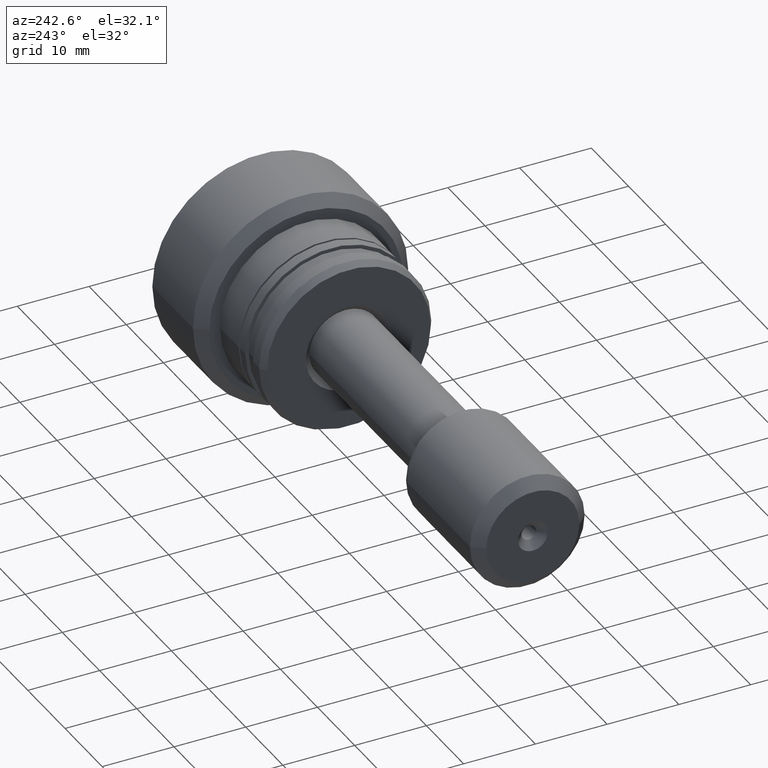
[diagram: clean part render]
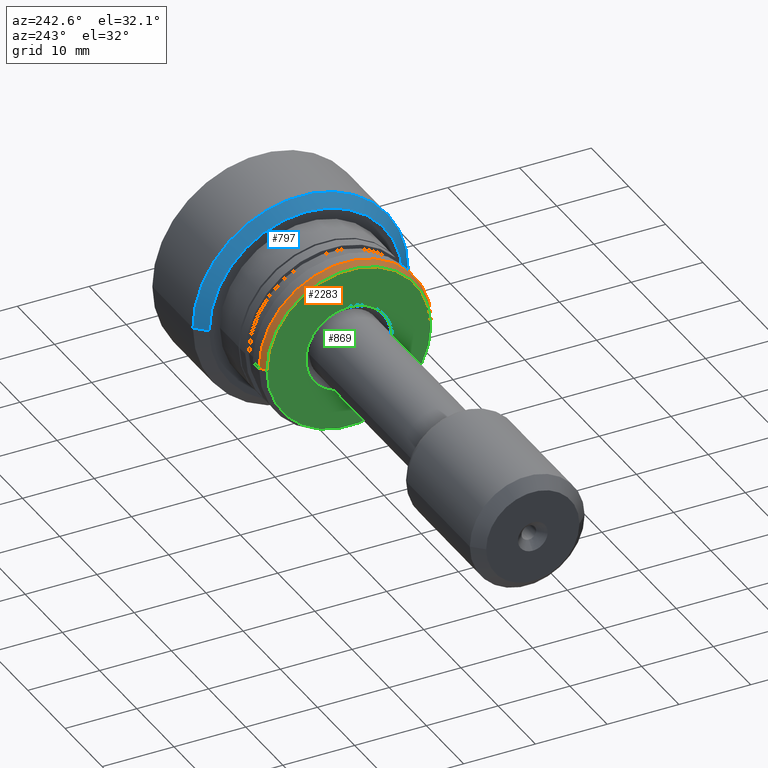
[diagram: same view with three faces highlighted in distinct colors, each labeled with its STEP entity id]
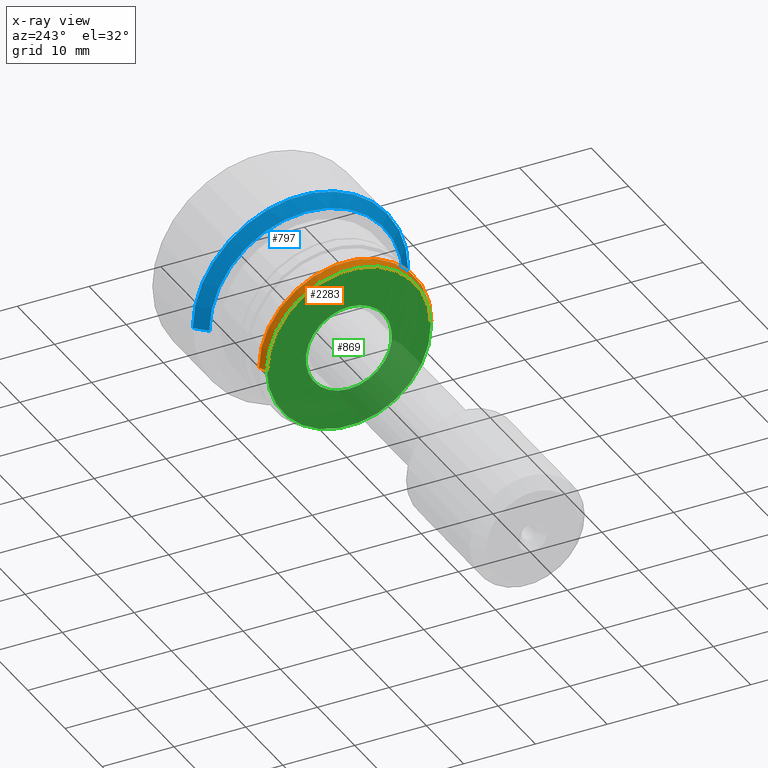
[diagram: x-ray of the same camera — body ghosted, the three highlighted faces saturated]
A machine part, auxiliary view with three faces highlighted in distinct colors.
The next image is the same camera in x-ray (body ghosted, the three faces saturated) — at least one of them is partly hidden behind the body in this view.
Their STEP definitions:

[orange] entity #2283 — the highlighted conical surface has half-angle 30 deg.
#16 = CARTESIAN_POINT ( 'NONE',  ( -23.50000000000017764, -12.00000000000000178, 1.469576158976823750E-15 ) ) ;
#104 = DIRECTION ( 'NONE',  ( 6.074679752449074474E-16, 1.000000000000000000, 0.000000000000000000 ) ) ;
#132 = ORIENTED_EDGE ( 'NONE', *, *, #460, .T. ) ;
#149 = DIRECTION ( 'NONE',  ( -1.000000000000000000, 6.415603269213350828E-16, -0.000000000000000000 ) ) ;
#150 = DIRECTION ( 'NONE',  ( 0.8660254037844403729, 0.4999999999999970024, 0.000000000000000000 ) ) ;
#165 = CARTESIAN_POINT ( 'NONE',  ( -24.50000000000000000, -11.42264973081048218, 1.398871143061842890E-15 ) ) ;
#252 = AXIS2_PLACEMENT_3D ( 'NONE', #1428, #149, #912 ) ;
#398 = CARTESIAN_POINT ( 'NONE',  ( -24.50000000000000000, -11.42264973081048218, 1.434223651019333320E-15 ) ) ;
#460 = EDGE_CURVE ( 'NONE', #1648, #1387, #2444, .T. ) ;
#470 = CARTESIAN_POINT ( 'NONE',  ( -24.49999999999999289, -3.708233295962657324E-15, 0.000000000000000000 ) ) ;
#488 = ORIENTED_EDGE ( 'NONE', *, *, #2274, .F. ) ;
#794 = VECTOR ( 'NONE', #150, 1000.000000000000000 ) ;
#850 = DIRECTION ( 'NONE',  ( 1.000000000000000000, -6.415603269213350828E-16, 0.000000000000000000 ) ) ;
#853 = EDGE_CURVE ( 'NONE', #2213, #1387, #2285, .T. ) ;
#857 = CARTESIAN_POINT ( 'NONE',  ( -24.49999999999998579, 11.42264973081047508, 0.000000000000000000 ) ) ;
#890 = VERTEX_POINT ( 'NONE', #398 ) ;
#912 = DIRECTION ( 'NONE',  ( -6.074679752449074474E-16, -1.000000000000000000, 0.000000000000000000 ) ) ;
#961 = EDGE_LOOP ( 'NONE', ( #488, #2079, #132, #2328 ) ) ;
#1307 = CARTESIAN_POINT ( 'NONE',  ( -23.50000000000016342, 11.99999999999999467, 0.000000000000000000 ) ) ;
#1343 = LINE ( 'NONE', #165, #2087 ) ;
#1387 = VERTEX_POINT ( 'NONE', #1307 ) ;
#1428 = CARTESIAN_POINT ( 'NONE',  ( -24.49999999999999289, -3.708233295962657324E-15, 0.000000000000000000 ) ) ;
#1573 = AXIS2_PLACEMENT_3D ( 'NONE', #470, #850, #104 ) ;
#1648 = VERTEX_POINT ( 'NONE', #16 ) ;
#1681 = FACE_OUTER_BOUND ( 'NONE', #961, .T. ) ;
#1692 = CONICAL_SURFACE ( 'NONE', #1573, 11.42264973081047863, 0.5235987755982960401 ) ;
#1710 = DIRECTION ( 'NONE',  ( 0.8660254037844397068, -0.4999999999999981126, 6.123233995736736454E-17 ) ) ;
#1717 = CARTESIAN_POINT ( 'NONE',  ( -23.50000000000017053, -4.349793622883880783E-15, 0.000000000000000000 ) ) ;
#1758 = AXIS2_PLACEMENT_3D ( 'NONE', #1717, #2130, #2272 ) ;
#1855 = CARTESIAN_POINT ( 'NONE',  ( -24.49999999999998579, 11.42264973081047508, 0.000000000000000000 ) ) ;
#2079 = ORIENTED_EDGE ( 'NONE', *, *, #2358, .T. ) ;
#2087 = VECTOR ( 'NONE', #1710, 1000.000000000000000 ) ;
#2130 = DIRECTION ( 'NONE',  ( -1.000000000000000000, 6.415603269213350828E-16, -0.000000000000000000 ) ) ;
#2213 = VERTEX_POINT ( 'NONE', #857 ) ;
#2272 = DIRECTION ( 'NONE',  ( -5.782411586589357639E-16, -1.000000000000000000, 0.000000000000000000 ) ) ;
#2274 = EDGE_CURVE ( 'NONE', #890, #2213, #2348, .T. ) ;
#2283 = ADVANCED_FACE ( 'NONE', ( #1681 ), #1692, .T. ) ;
#2285 = LINE ( 'NONE', #1855, #794 ) ;
#2328 = ORIENTED_EDGE ( 'NONE', *, *, #853, .F. ) ;
#2348 = CIRCLE ( 'NONE', #252, 11.42264973081047863 ) ;
#2358 = EDGE_CURVE ( 'NONE', #890, #1648, #1343, .T. ) ;
#2444 = CIRCLE ( 'NONE', #1758, 11.99999999999999822 ) ;

[blue] entity #797 — the highlighted conical surface has half-angle 45 deg.
#10 = VERTEX_POINT ( 'NONE', #1330 ) ;
#48 = AXIS2_PLACEMENT_3D ( 'NONE', #1436, #856, #1626 ) ;
#236 = VERTEX_POINT ( 'NONE', #713 ) ;
#341 = CARTESIAN_POINT ( 'NONE',  ( -11.50000000000066969, 14.99999999999997691, 0.000000000000000000 ) ) ;
#361 = DIRECTION ( 'NONE',  ( 0.7071067811865483499, -0.7071067811865467956, 8.659560562354918067E-17 ) ) ;
#451 = DIRECTION ( 'NONE',  ( -1.000000000000000000, 6.415603269213350828E-16, -0.000000000000000000 ) ) ;
#480 = CIRCLE ( 'NONE', #48, 13.50000000000068034 ) ;
#529 = LINE ( 'NONE', #1691, #1531 ) ;
#532 = LINE ( 'NONE', #1515, #1574 ) ;
#576 = EDGE_CURVE ( 'NONE', #236, #2265, #2374, .T. ) ;
#713 = CARTESIAN_POINT ( 'NONE',  ( -11.50000000000069100, -15.00000000000000178, 1.836970198721028406E-15 ) ) ;
#753 = CONICAL_SURFACE ( 'NONE', #2150, 13.50000000000068034, 0.7853981633974466137 ) ;
#797 = ADVANCED_FACE ( 'NONE', ( #1199 ), #753, .T. ) ;
#856 = DIRECTION ( 'NONE',  ( -1.000000000000000000, 6.415603269213350828E-16, -0.000000000000000000 ) ) ;
#953 = EDGE_LOOP ( 'NONE', ( #1254, #2141, #1340, #1286 ) ) ;
#1126 = DIRECTION ( 'NONE',  ( 0.7071067811865491270, 0.7071067811865459074, 0.000000000000000000 ) ) ;
#1199 = FACE_OUTER_BOUND ( 'NONE', #953, .T. ) ;
#1216 = CARTESIAN_POINT ( 'NONE',  ( -11.50000000000068034, -1.204851754593957361E-14, 0.000000000000000000 ) ) ;
#1254 = ORIENTED_EDGE ( 'NONE', *, *, #2327, .F. ) ;
#1286 = ORIENTED_EDGE ( 'NONE', *, *, #2386, .F. ) ;
#1330 = CARTESIAN_POINT ( 'NONE',  ( -12.99999999999998579, 13.50000000000066969, 0.000000000000000000 ) ) ;
#1340 = ORIENTED_EDGE ( 'NONE', *, *, #576, .T. ) ;
#1382 = DIRECTION ( 'NONE',  ( -6.938893903907233308E-16, -1.000000000000000000, 0.000000000000000000 ) ) ;
#1385 = VERTEX_POINT ( 'NONE', #2402 ) ;
#1436 = CARTESIAN_POINT ( 'NONE',  ( -12.99999999999999467, -1.108617705555801137E-14, 0.000000000000000000 ) ) ;
#1515 = CARTESIAN_POINT ( 'NONE',  ( -12.99999999999998579, 13.50000000000066969, 0.000000000000000000 ) ) ;
#1531 = VECTOR ( 'NONE', #361, 1000.000000000000000 ) ;
#1574 = VECTOR ( 'NONE', #1126, 1000.000000000000114 ) ;
#1626 = DIRECTION ( 'NONE',  ( -6.424901762876739076E-16, -1.000000000000000000, 0.000000000000000000 ) ) ;
#1691 = CARTESIAN_POINT ( 'NONE',  ( -13.00000000000000355, -13.50000000000069100, 1.653273178849010091E-15 ) ) ;
#1736 = DIRECTION ( 'NONE',  ( 6.424901762876739076E-16, 1.000000000000000000, 0.000000000000000000 ) ) ;
#1911 = DIRECTION ( 'NONE',  ( 1.000000000000000000, -6.415603269213350828E-16, 0.000000000000000000 ) ) ;
#1971 = CARTESIAN_POINT ( 'NONE',  ( -12.99999999999999467, -1.108617705555801137E-14, 0.000000000000000000 ) ) ;
#2034 = AXIS2_PLACEMENT_3D ( 'NONE', #1216, #451, #1382 ) ;
#2088 = EDGE_CURVE ( 'NONE', #1385, #236, #529, .T. ) ;
#2141 = ORIENTED_EDGE ( 'NONE', *, *, #2088, .T. ) ;
#2150 = AXIS2_PLACEMENT_3D ( 'NONE', #1971, #1911, #1736 ) ;
#2265 = VERTEX_POINT ( 'NONE', #341 ) ;
#2327 = EDGE_CURVE ( 'NONE', #1385, #10, #480, .T. ) ;
#2374 = CIRCLE ( 'NONE', #2034, 14.99999999999998934 ) ;
#2386 = EDGE_CURVE ( 'NONE', #10, #2265, #532, .T. ) ;
#2402 = CARTESIAN_POINT ( 'NONE',  ( -13.00000000000000355, -13.50000000000069100, 1.745121688785019051E-15 ) ) ;

[green] entity #869 — the highlighted planar face has unit normal (-1, 0, 0).
#38 = CIRCLE ( 'NONE', #244, 6.000000000000019540 ) ;
#123 = FACE_OUTER_BOUND ( 'NONE', #139, .T. ) ;
#139 = EDGE_LOOP ( 'NONE', ( #1309, #844 ) ) ;
#149 = DIRECTION ( 'NONE',  ( -1.000000000000000000, 6.415603269213350828E-16, -0.000000000000000000 ) ) ;
#158 = DIRECTION ( 'NONE',  ( -1.000000000000000000, 6.415603269213350828E-16, -0.000000000000000000 ) ) ;
#244 = AXIS2_PLACEMENT_3D ( 'NONE', #971, #1337, #2095 ) ;
#252 = AXIS2_PLACEMENT_3D ( 'NONE', #1428, #149, #912 ) ;
#318 = CIRCLE ( 'NONE', #475, 6.000000000000019540 ) ;
#349 = CARTESIAN_POINT ( 'NONE',  ( -24.49999999999999289, -3.708233295962657324E-15, 0.000000000000000000 ) ) ;
#367 = CARTESIAN_POINT ( 'NONE',  ( -24.49999999999999645, 7.347880794884138472E-16, -6.000000000000015987 ) ) ;
#398 = CARTESIAN_POINT ( 'NONE',  ( -24.50000000000000000, -11.42264973081048218, 1.434223651019333320E-15 ) ) ;
#475 = AXIS2_PLACEMENT_3D ( 'NONE', #729, #1499, #1905 ) ;
#478 = ORIENTED_EDGE ( 'NONE', *, *, #490, .T. ) ;
#490 = EDGE_CURVE ( 'NONE', #595, #1857, #38, .T. ) ;
#595 = VERTEX_POINT ( 'NONE', #803 ) ;
#729 = CARTESIAN_POINT ( 'NONE',  ( -24.49999999999999645, 0.000000000000000000, 0.000000000000000000 ) ) ;
#803 = CARTESIAN_POINT ( 'NONE',  ( -24.49999999999999645, 0.000000000000000000, 6.000000000000015987 ) ) ;
#844 = ORIENTED_EDGE ( 'NONE', *, *, #2274, .T. ) ;
#857 = CARTESIAN_POINT ( 'NONE',  ( -24.49999999999998579, 11.42264973081047508, 0.000000000000000000 ) ) ;
#869 = ADVANCED_FACE ( 'NONE', ( #1342, #123 ), #2405, .T. ) ;
#890 = VERTEX_POINT ( 'NONE', #398 ) ;
#900 = DIRECTION ( 'NONE',  ( -6.415603269213350828E-16, -1.000000000000000000, 0.000000000000000000 ) ) ;
#912 = DIRECTION ( 'NONE',  ( -6.074679752449074474E-16, -1.000000000000000000, 0.000000000000000000 ) ) ;
#971 = CARTESIAN_POINT ( 'NONE',  ( -24.49999999999999645, 0.000000000000000000, 0.000000000000000000 ) ) ;
#1062 = EDGE_LOOP ( 'NONE', ( #478, #1376 ) ) ;
#1122 = EDGE_CURVE ( 'NONE', #1857, #595, #318, .T. ) ;
#1309 = ORIENTED_EDGE ( 'NONE', *, *, #2101, .T. ) ;
#1337 = DIRECTION ( 'NONE',  ( 1.000000000000000000, -6.415603269213350828E-16, 0.000000000000000000 ) ) ;
#1342 = FACE_BOUND ( 'NONE', #1062, .T. ) ;
#1376 = ORIENTED_EDGE ( 'NONE', *, *, #1122, .T. ) ;
#1407 = AXIS2_PLACEMENT_3D ( 'NONE', #349, #158, #1872 ) ;
#1428 = CARTESIAN_POINT ( 'NONE',  ( -24.49999999999999289, -3.708233295962657324E-15, 0.000000000000000000 ) ) ;
#1452 = DIRECTION ( 'NONE',  ( -1.000000000000000000, 6.415603269213350828E-16, 0.000000000000000000 ) ) ;
#1499 = DIRECTION ( 'NONE',  ( 1.000000000000000000, -6.415603269213350828E-16, 0.000000000000000000 ) ) ;
#1835 = AXIS2_PLACEMENT_3D ( 'NONE', #2026, #1452, #900 ) ;
#1857 = VERTEX_POINT ( 'NONE', #367 ) ;
#1872 = DIRECTION ( 'NONE',  ( -6.074679752449074474E-16, -1.000000000000000000, 0.000000000000000000 ) ) ;
#1905 = DIRECTION ( 'NONE',  ( -5.782411586589337917E-16, -1.000000000000000000, 0.000000000000000000 ) ) ;
#2026 = CARTESIAN_POINT ( 'NONE',  ( -24.49999999999999645, -3.708233295962654957E-15, 0.000000000000000000 ) ) ;
#2095 = DIRECTION ( 'NONE',  ( -5.782411586589337917E-16, -1.000000000000000000, 0.000000000000000000 ) ) ;
#2101 = EDGE_CURVE ( 'NONE', #2213, #890, #2346, .T. ) ;
#2213 = VERTEX_POINT ( 'NONE', #857 ) ;
#2274 = EDGE_CURVE ( 'NONE', #890, #2213, #2348, .T. ) ;
#2346 = CIRCLE ( 'NONE', #1407, 11.42264973081047863 ) ;
#2348 = CIRCLE ( 'NONE', #252, 11.42264973081047863 ) ;
#2405 = PLANE ( 'NONE',  #1835 ) ;